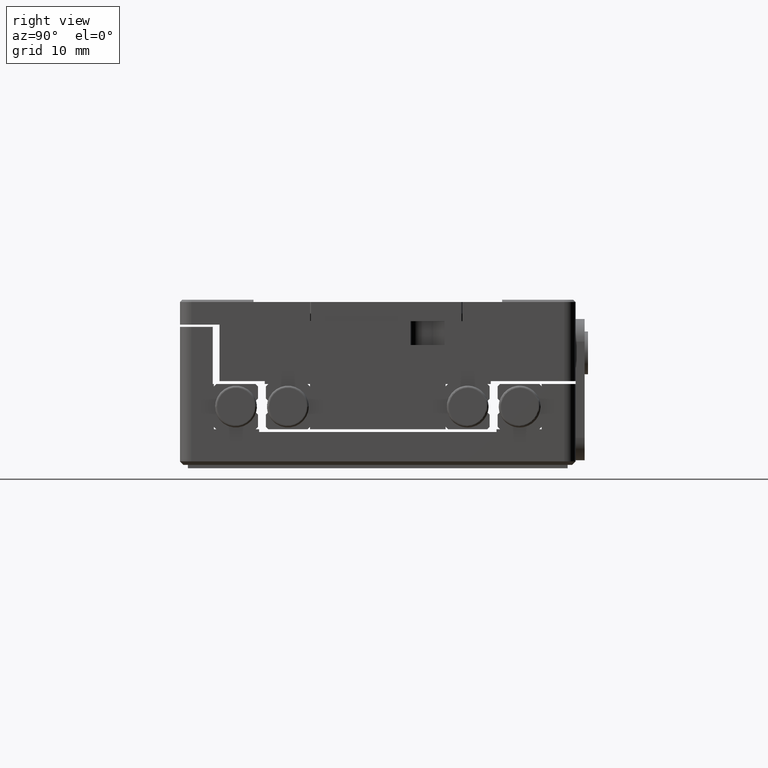
[diagram: clean part render]
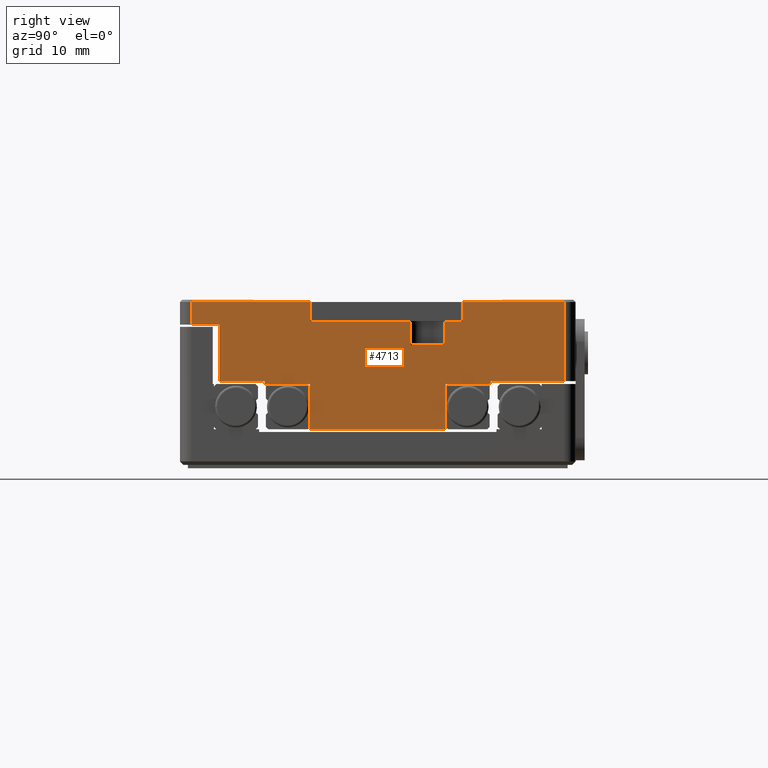
[diagram: same view with one face highlighted and labeled with its STEP entity id]
A machine part, right view. The second image highlights one B-rep face of the part: STEP entity #4713.
In plain terms, the highlighted planar face has unit normal (-1, 0, 0).
Its self-contained STEP definition (entity closure, byte-faithful):
#209 = CARTESIAN_POINT ( 'NONE',  ( 27.63157894736844966, 12.95546558704454121, 4.250000000000000000 ) ) ;
#420 = VERTEX_POINT ( 'NONE', #7894 ) ;
#667 = ORIENTED_EDGE ( 'NONE', *, *, #2208, .F. ) ;
#830 = CARTESIAN_POINT ( 'NONE',  ( 27.63157894736844966, -10.54453441295546057, 7.450000000000000178 ) ) ;
#850 = CARTESIAN_POINT ( 'NONE',  ( 27.63157894736844966, -22.04453441295544991, 9.250000000000000000 ) ) ;
#860 = LINE ( 'NONE', #10318, #979 ) ;
#880 = CARTESIAN_POINT ( 'NONE',  ( 27.63157894736844966, 11.95546558704453943, 11.25000000000000000 ) ) ;
#938 = VECTOR ( 'NONE', #11252, 1000.000000000000000 ) ;
#966 = ORIENTED_EDGE ( 'NONE', *, *, #11247, .F. ) ;
#979 = VECTOR ( 'NONE', #5056, 1000.000000000000000 ) ;
#1093 = EDGE_CURVE ( 'NONE', #10420, #13247, #1763, .T. ) ;
#1173 = ORIENTED_EDGE ( 'NONE', *, *, #2945, .T. ) ;
#1177 = VERTEX_POINT ( 'NONE', #5112 ) ;
#1185 = LINE ( 'NONE', #2433, #13714 ) ;
#1296 = LINE ( 'NONE', #8601, #4886 ) ;
#1305 = CARTESIAN_POINT ( 'NONE',  ( 27.63157894736844966, -1.644534412955465097, 7.450000000000000178 ) ) ;
#1331 = ORIENTED_EDGE ( 'NONE', *, *, #6350, .F. ) ;
#1356 = CARTESIAN_POINT ( 'NONE',  ( 27.63157894736844966, -10.54453441295546057, 9.549999999999998934 ) ) ;
#1618 = CARTESIAN_POINT ( 'NONE',  ( 27.63157894736844966, -22.04453441295544991, 4.000000000000000000 ) ) ;
#1636 = DIRECTION ( 'NONE',  ( -9.912705577010329247E-17, -1.000000000000000000, 0.000000000000000000 ) ) ;
#1654 = VECTOR ( 'NONE', #8709, 1000.000000000000000 ) ;
#1670 = EDGE_CURVE ( 'NONE', #13247, #6894, #8413, .T. ) ;
#1763 = LINE ( 'NONE', #2665, #8307 ) ;
#1803 = VERTEX_POINT ( 'NONE', #6679 ) ;
#1902 = DIRECTION ( 'NONE',  ( 0.000000000000000000, 0.000000000000000000, -1.000000000000000000 ) ) ;
#1925 = ORIENTED_EDGE ( 'NONE', *, *, #3307, .T. ) ;
#2047 = DIRECTION ( 'NONE',  ( 0.000000000000000000, 0.000000000000000000, 1.000000000000000000 ) ) ;
#2208 = EDGE_CURVE ( 'NONE', #11674, #6017, #1296, .T. ) ;
#2265 = EDGE_CURVE ( 'NONE', #1177, #11194, #2413, .T. ) ;
#2372 = CARTESIAN_POINT ( 'NONE',  ( 27.63157894736844966, -18.54453441295544991, 4.250000000000000000 ) ) ;
#2413 = LINE ( 'NONE', #1356, #7966 ) ;
#2416 = EDGE_CURVE ( 'NONE', #9517, #11070, #8297, .T. ) ;
#2433 = CARTESIAN_POINT ( 'NONE',  ( 27.63157894736844966, -18.54453441295544991, 9.250000000000000000 ) ) ;
#2472 = CARTESIAN_POINT ( 'NONE',  ( 27.63157894736844966, -22.04453441295544991, 0.000000000000000000 ) ) ;
#2646 = VECTOR ( 'NONE', #4842, 1000.000000000000000 ) ;
#2665 = CARTESIAN_POINT ( 'NONE',  ( 27.63157894736844966, -1.644534412955465097, 89.29690513154130826 ) ) ;
#2736 = LINE ( 'NONE', #11277, #11398 ) ;
#2765 = VECTOR ( 'NONE', #3870, 1000.000000000000000 ) ;
#2874 = EDGE_CURVE ( 'NONE', #3820, #11999, #3549, .T. ) ;
#2909 = VERTEX_POINT ( 'NONE', #6557 ) ;
#2945 = EDGE_CURVE ( 'NONE', #9517, #7150, #1185, .T. ) ;
#2968 = DIRECTION ( 'NONE',  ( -9.912705577010329247E-17, -1.000000000000000000, 0.000000000000000000 ) ) ;
#2972 = CARTESIAN_POINT ( 'NONE',  ( 27.63157894736844966, -15.54453441295544991, 11.25000000000000000 ) ) ;
#3050 = DIRECTION ( 'NONE',  ( 0.000000000000000000, 0.000000000000000000, 1.000000000000000000 ) ) ;
#3075 = VECTOR ( 'NONE', #3050, 1000.000000000000000 ) ;
#3099 = CARTESIAN_POINT ( 'NONE',  ( 27.63157894736844966, -10.54453441295546057, 4.000000000000000000 ) ) ;
#3120 = CARTESIAN_POINT ( 'NONE',  ( 27.63157894736844966, 1.455465587044534104, 0.000000000000000000 ) ) ;
#3151 = VERTEX_POINT ( 'NONE', #3120 ) ;
#3258 = ORIENTED_EDGE ( 'NONE', *, *, #5151, .F. ) ;
#3307 = EDGE_CURVE ( 'NONE', #3820, #13053, #7295, .T. ) ;
#3353 = ORIENTED_EDGE ( 'NONE', *, *, #2416, .F. ) ;
#3366 = CARTESIAN_POINT ( 'NONE',  ( 27.63157894736844966, -10.54453441295546057, 9.549999999999998934 ) ) ;
#3370 = LINE ( 'NONE', #13015, #1654 ) ;
#3549 = LINE ( 'NONE', #209, #8824 ) ;
#3630 = VECTOR ( 'NONE', #10994, 1000.000000000000000 ) ;
#3820 = VERTEX_POINT ( 'NONE', #8521 ) ;
#3870 = DIRECTION ( 'NONE',  ( 0.000000000000000000, 0.000000000000000000, -1.000000000000000000 ) ) ;
#4125 = ORIENTED_EDGE ( 'NONE', *, *, #7133, .T. ) ;
#4142 = CARTESIAN_POINT ( 'NONE',  ( 27.63157894736844966, -18.54453441295544991, 9.250000000000000000 ) ) ;
#4204 = CARTESIAN_POINT ( 'NONE',  ( 27.63157894736844966, -14.54453441295546057, 4.250000000000000000 ) ) ;
#4306 = VERTEX_POINT ( 'NONE', #3366 ) ;
#4426 = FACE_OUTER_BOUND ( 'NONE', #11591, .T. ) ;
#4451 = ORIENTED_EDGE ( 'NONE', *, *, #2874, .F. ) ;
#4696 = CARTESIAN_POINT ( 'NONE',  ( 27.63157894736844966, -10.54453441295546057, 11.25000000000000000 ) ) ;
#4713 = ADVANCED_FACE ( 'NONE', ( #4426 ), #5272, .F. ) ;
#4842 = DIRECTION ( 'NONE',  ( 0.000000000000000000, -1.000000000000000000, 0.000000000000000000 ) ) ;
#4886 = VECTOR ( 'NONE', #6466, 1000.000000000000000 ) ;
#4998 = ORIENTED_EDGE ( 'NONE', *, *, #8116, .T. ) ;
#5056 = DIRECTION ( 'NONE',  ( 0.000000000000000000, 0.000000000000000000, -1.000000000000000000 ) ) ;
#5112 = CARTESIAN_POINT ( 'NONE',  ( 27.63157894736844966, 1.355465587044536013, 9.549999999999998934 ) ) ;
#5151 = EDGE_CURVE ( 'NONE', #11999, #420, #2736, .T. ) ;
#5195 = AXIS2_PLACEMENT_3D ( 'NONE', #7609, #8374, #2047 ) ;
#5203 = CARTESIAN_POINT ( 'NONE',  ( 27.63157894736844966, -22.04453441295544991, 11.25000000000000000 ) ) ;
#5272 = PLANE ( 'NONE',  #5195 ) ;
#5418 = ORIENTED_EDGE ( 'NONE', *, *, #11590, .F. ) ;
#5507 = VERTEX_POINT ( 'NONE', #10131 ) ;
#5531 = VECTOR ( 'NONE', #7884, 1000.000000000000000 ) ;
#5966 = LINE ( 'NONE', #9905, #10967 ) ;
#5993 = CARTESIAN_POINT ( 'NONE',  ( 27.63157894736844966, -22.04453441295544991, 11.25000000000000000 ) ) ;
#6017 = VERTEX_POINT ( 'NONE', #8172 ) ;
#6057 = VECTOR ( 'NONE', #13562, 1000.000000000000000 ) ;
#6087 = VERTEX_POINT ( 'NONE', #3099 ) ;
#6179 = ORIENTED_EDGE ( 'NONE', *, *, #1093, .F. ) ;
#6266 = CARTESIAN_POINT ( 'NONE',  ( 27.63157894736844966, -1.644534412955465097, 9.549999999999998934 ) ) ;
#6350 = EDGE_CURVE ( 'NONE', #6087, #5507, #13024, .T. ) ;
#6353 = CARTESIAN_POINT ( 'NONE',  ( 27.63157894736844966, -21.04453441295544636, 11.25000000000000000 ) ) ;
#6359 = CARTESIAN_POINT ( 'NONE',  ( 27.63157894736844966, -10.54453441295546057, 9.549999999999998934 ) ) ;
#6438 = VERTEX_POINT ( 'NONE', #4696 ) ;
#6453 = VECTOR ( 'NONE', #11904, 1000.000000000000000 ) ;
#6466 = DIRECTION ( 'NONE',  ( 9.912705577010319386E-17, 1.000000000000000000, 0.000000000000000000 ) ) ;
#6557 = CARTESIAN_POINT ( 'NONE',  ( 27.63157894736844966, 1.455465587044536102, 4.000000000000000000 ) ) ;
#6679 = CARTESIAN_POINT ( 'NONE',  ( 27.63157894736844966, -10.54453441295546057, 0.000000000000000000 ) ) ;
#6753 = ORIENTED_EDGE ( 'NONE', *, *, #10890, .F. ) ;
#6803 = VERTEX_POINT ( 'NONE', #7671 ) ;
#6837 = CARTESIAN_POINT ( 'NONE',  ( 27.63157894736844966, -21.04453441295544636, 9.250000000000000000 ) ) ;
#6894 = VERTEX_POINT ( 'NONE', #10007 ) ;
#6920 = CARTESIAN_POINT ( 'NONE',  ( 27.63157894736844966, -14.54453441295546057, 4.250000000000000000 ) ) ;
#7059 = ORIENTED_EDGE ( 'NONE', *, *, #7371, .T. ) ;
#7133 = EDGE_CURVE ( 'NONE', #13416, #6803, #7581, .T. ) ;
#7150 = VERTEX_POINT ( 'NONE', #2372 ) ;
#7295 = LINE ( 'NONE', #880, #3075 ) ;
#7371 = EDGE_CURVE ( 'NONE', #13053, #6017, #13449, .T. ) ;
#7386 = LINE ( 'NONE', #6359, #12251 ) ;
#7505 = CARTESIAN_POINT ( 'NONE',  ( 27.63157894736844966, 5.455465587044540321, 4.250000000000000000 ) ) ;
#7581 = LINE ( 'NONE', #12266, #10395 ) ;
#7609 = CARTESIAN_POINT ( 'NONE',  ( 27.63157894736844966, -22.04453441295544991, 11.25000000000000000 ) ) ;
#7671 = CARTESIAN_POINT ( 'NONE',  ( 27.63157894736844966, -21.04453441295544636, 11.25000000000000000 ) ) ;
#7672 = LINE ( 'NONE', #4204, #6453 ) ;
#7884 = DIRECTION ( 'NONE',  ( 0.000000000000000000, -1.000000000000000000, 0.000000000000000000 ) ) ;
#7894 = CARTESIAN_POINT ( 'NONE',  ( 27.63157894736844966, 5.455465587044540321, 4.000000000000000000 ) ) ;
#7966 = VECTOR ( 'NONE', #9577, 1000.000000000000000 ) ;
#8020 = LINE ( 'NONE', #12334, #2765 ) ;
#8031 = ORIENTED_EDGE ( 'NONE', *, *, #9050, .F. ) ;
#8116 = EDGE_CURVE ( 'NONE', #8740, #5507, #7672, .T. ) ;
#8172 = CARTESIAN_POINT ( 'NONE',  ( 27.63157894736844966, 6.455465587044540321, 11.25000000000000000 ) ) ;
#8297 = LINE ( 'NONE', #850, #2646 ) ;
#8307 = VECTOR ( 'NONE', #1902, 1000.000000000000000 ) ;
#8374 = DIRECTION ( 'NONE',  ( -1.000000000000000000, 9.912705577010329247E-17, 0.000000000000000000 ) ) ;
#8413 = LINE ( 'NONE', #830, #10024 ) ;
#8480 = DIRECTION ( 'NONE',  ( 0.000000000000000000, 1.000000000000000000, 0.000000000000000000 ) ) ;
#8521 = CARTESIAN_POINT ( 'NONE',  ( 27.63157894736844966, 11.95546558704453943, 4.250000000000000000 ) ) ;
#8561 = EDGE_CURVE ( 'NONE', #6803, #11070, #11613, .T. ) ;
#8601 = CARTESIAN_POINT ( 'NONE',  ( 27.63157894736844966, -22.04453441295544991, 11.25000000000000000 ) ) ;
#8709 = DIRECTION ( 'NONE',  ( 0.000000000000000000, 0.000000000000000000, 1.000000000000000000 ) ) ;
#8740 = VERTEX_POINT ( 'NONE', #12487 ) ;
#8824 = VECTOR ( 'NONE', #12858, 1000.000000000000000 ) ;
#8989 = EDGE_CURVE ( 'NONE', #1177, #6894, #8020, .T. ) ;
#8997 = LINE ( 'NONE', #6920, #9356 ) ;
#9013 = ORIENTED_EDGE ( 'NONE', *, *, #8561, .T. ) ;
#9050 = EDGE_CURVE ( 'NONE', #2909, #3151, #860, .T. ) ;
#9126 = EDGE_CURVE ( 'NONE', #420, #2909, #5966, .T. ) ;
#9260 = DIRECTION ( 'NONE',  ( 0.000000000000000000, 1.000000000000000000, 0.000000000000000000 ) ) ;
#9356 = VECTOR ( 'NONE', #11145, 1000.000000000000000 ) ;
#9397 = LINE ( 'NONE', #12589, #6057 ) ;
#9517 = VERTEX_POINT ( 'NONE', #4142 ) ;
#9567 = EDGE_CURVE ( 'NONE', #4306, #6438, #3370, .T. ) ;
#9577 = DIRECTION ( 'NONE',  ( 0.000000000000000000, 1.000000000000000000, 0.000000000000000000 ) ) ;
#9905 = CARTESIAN_POINT ( 'NONE',  ( 27.63157894736844966, 12.95546558704454121, 4.000000000000000000 ) ) ;
#9965 = ORIENTED_EDGE ( 'NONE', *, *, #11264, .T. ) ;
#9988 = ORIENTED_EDGE ( 'NONE', *, *, #9126, .F. ) ;
#9994 = ORIENTED_EDGE ( 'NONE', *, *, #13739, .F. ) ;
#10007 = CARTESIAN_POINT ( 'NONE',  ( 27.63157894736844966, 1.355465587044536013, 7.450000000000000178 ) ) ;
#10024 = VECTOR ( 'NONE', #8480, 1000.000000000000000 ) ;
#10081 = ORIENTED_EDGE ( 'NONE', *, *, #8989, .T. ) ;
#10131 = CARTESIAN_POINT ( 'NONE',  ( 27.63157894736844966, -14.54453441295546057, 4.000000000000000000 ) ) ;
#10141 = LINE ( 'NONE', #5993, #938 ) ;
#10318 = CARTESIAN_POINT ( 'NONE',  ( 27.63157894736844966, 1.455465587044536102, 4.000000000000000000 ) ) ;
#10395 = VECTOR ( 'NONE', #1636, 1000.000000000000000 ) ;
#10420 = VERTEX_POINT ( 'NONE', #6266 ) ;
#10477 = ORIENTED_EDGE ( 'NONE', *, *, #9567, .T. ) ;
#10790 = LINE ( 'NONE', #11841, #3630 ) ;
#10834 = VECTOR ( 'NONE', #2968, 1000.000000000000000 ) ;
#10869 = DIRECTION ( 'NONE',  ( 0.000000000000000000, -1.000000000000000000, 0.000000000000000000 ) ) ;
#10890 = EDGE_CURVE ( 'NONE', #11194, #11674, #10790, .T. ) ;
#10967 = VECTOR ( 'NONE', #10869, 1000.000000000000000 ) ;
#10969 = DIRECTION ( 'NONE',  ( 0.000000000000000000, 0.000000000000000000, -1.000000000000000000 ) ) ;
#10994 = DIRECTION ( 'NONE',  ( 0.000000000000000000, 0.000000000000000000, 1.000000000000000000 ) ) ;
#11041 = CARTESIAN_POINT ( 'NONE',  ( 27.63157894736844966, 2.955465587044534992, 11.25000000000000000 ) ) ;
#11070 = VERTEX_POINT ( 'NONE', #6837 ) ;
#11145 = DIRECTION ( 'NONE',  ( 0.000000000000000000, -1.000000000000000000, 0.000000000000000000 ) ) ;
#11194 = VERTEX_POINT ( 'NONE', #13500 ) ;
#11247 = EDGE_CURVE ( 'NONE', #4306, #10420, #7386, .T. ) ;
#11252 = DIRECTION ( 'NONE',  ( 9.912705577010319386E-17, 1.000000000000000000, 0.000000000000000000 ) ) ;
#11264 = EDGE_CURVE ( 'NONE', #6087, #1803, #9397, .T. ) ;
#11277 = CARTESIAN_POINT ( 'NONE',  ( 27.63157894736844966, 5.455465587044540321, 4.250000000000000000 ) ) ;
#11398 = VECTOR ( 'NONE', #11538, 1000.000000000000000 ) ;
#11538 = DIRECTION ( 'NONE',  ( 0.000000000000000000, 0.000000000000000000, -1.000000000000000000 ) ) ;
#11590 = EDGE_CURVE ( 'NONE', #13416, #6438, #10141, .T. ) ;
#11591 = EDGE_LOOP ( 'NONE', ( #6179, #966, #10477, #5418, #4125, #9013, #3353, #1173, #9994, #4998, #1331, #9965, #11739, #8031, #9988, #3258, #4451, #1925, #7059, #667, #6753, #12104, #10081, #11881 ) ) ;
#11613 = LINE ( 'NONE', #6353, #13166 ) ;
#11674 = VERTEX_POINT ( 'NONE', #11041 ) ;
#11739 = ORIENTED_EDGE ( 'NONE', *, *, #12545, .T. ) ;
#11841 = CARTESIAN_POINT ( 'NONE',  ( 27.63157894736844966, 2.955465587044534992, 9.549999999999998934 ) ) ;
#11881 = ORIENTED_EDGE ( 'NONE', *, *, #1670, .F. ) ;
#11904 = DIRECTION ( 'NONE',  ( 0.000000000000000000, 0.000000000000000000, -1.000000000000000000 ) ) ;
#11999 = VERTEX_POINT ( 'NONE', #7505 ) ;
#12062 = DIRECTION ( 'NONE',  ( 9.912705577010319386E-17, 1.000000000000000000, 0.000000000000000000 ) ) ;
#12104 = ORIENTED_EDGE ( 'NONE', *, *, #2265, .F. ) ;
#12251 = VECTOR ( 'NONE', #9260, 1000.000000000000000 ) ;
#12266 = CARTESIAN_POINT ( 'NONE',  ( 27.63157894736844966, -21.04453441295544636, 11.25000000000000000 ) ) ;
#12334 = CARTESIAN_POINT ( 'NONE',  ( 27.63157894736844966, 1.355465587044536013, 89.29690513154130826 ) ) ;
#12487 = CARTESIAN_POINT ( 'NONE',  ( 27.63157894736844966, -14.54453441295546057, 4.250000000000000000 ) ) ;
#12545 = EDGE_CURVE ( 'NONE', #1803, #3151, #13304, .T. ) ;
#12589 = CARTESIAN_POINT ( 'NONE',  ( 27.63157894736844966, -10.54453441295546057, 4.000000000000000000 ) ) ;
#12720 = DIRECTION ( 'NONE',  ( 0.000000000000000000, 0.000000000000000000, -1.000000000000000000 ) ) ;
#12858 = DIRECTION ( 'NONE',  ( 0.000000000000000000, -1.000000000000000000, 0.000000000000000000 ) ) ;
#13015 = CARTESIAN_POINT ( 'NONE',  ( 27.63157894736844966, -10.54453441295546057, 9.549999999999998934 ) ) ;
#13024 = LINE ( 'NONE', #1618, #5531 ) ;
#13053 = VERTEX_POINT ( 'NONE', #13689 ) ;
#13166 = VECTOR ( 'NONE', #12720, 1000.000000000000000 ) ;
#13247 = VERTEX_POINT ( 'NONE', #1305 ) ;
#13304 = LINE ( 'NONE', #2472, #13586 ) ;
#13416 = VERTEX_POINT ( 'NONE', #2972 ) ;
#13449 = LINE ( 'NONE', #5203, #10834 ) ;
#13500 = CARTESIAN_POINT ( 'NONE',  ( 27.63157894736844966, 2.955465587044534992, 9.549999999999998934 ) ) ;
#13562 = DIRECTION ( 'NONE',  ( 0.000000000000000000, 0.000000000000000000, -1.000000000000000000 ) ) ;
#13586 = VECTOR ( 'NONE', #12062, 1000.000000000000000 ) ;
#13689 = CARTESIAN_POINT ( 'NONE',  ( 27.63157894736844966, 11.95546558704453943, 11.25000000000000000 ) ) ;
#13714 = VECTOR ( 'NONE', #10969, 1000.000000000000000 ) ;
#13739 = EDGE_CURVE ( 'NONE', #8740, #7150, #8997, .T. ) ;